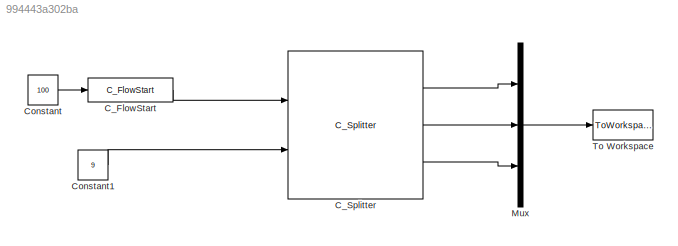
MODEL slx_994443a302ba
KIND model
CONFIG AbsTol = auto
CONFIG EnableMultiTasking = on
CONFIG FixedStep = auto
CONFIG MaxStep = auto
CONFIG MinStep = auto
CONFIG RelTol = 1e-3
CONFIG SampleTimeConstraint = Unconstrained
CONFIG Solver = ode45
CONFIG SolverName = ode45
CONFIG StartTime = 0.0
CONFIG StopTime = 10.0
BLOCK [Reference] C_FlowStart  REF=Lib_TurboC_FlowStart_TMATSC/C_FlowStart
  Ports = [1, 1]
  SourceBlock = Lib_TurboC_FlowStart_TMATSC/C_FlowStart
  SourceType = TMATS: Flow Start Library Block, cantera
BLOCK [Reference] C_Splitter  REF=Lib_TurboC_Splitter_TMATSC/C_Splitter
  Ports = [2, 3]
  SourceBlock = Lib_TurboC_Splitter_TMATSC/C_Splitter
  SourceType = TMATS: Splitter Library Block, cantera
BLOCK [Constant] Constant
  Value = 100
BLOCK [Constant] Constant1
  Value = 9
BLOCK [Mux] Mux
  DisplayOption = bar
  Inputs = 3
  Ports = [3, 1]
BLOCK [ToWorkspace] To Workspace
  MaxDataPoints = inf
  Ports = [1]
  SampleTime = -1
  SaveFormat = Timeseries
  VariableName = simout
LINE C_FlowStart:1 -> C_Splitter:1
LINE C_Splitter:1 -> Mux:1
LINE C_Splitter:2 -> Mux:2
LINE C_Splitter:3 -> Mux:3
LINE Constant1:1 -> C_Splitter:2
LINE Constant:1 -> C_FlowStart:1
LINE Mux:1 -> To Workspace:1
